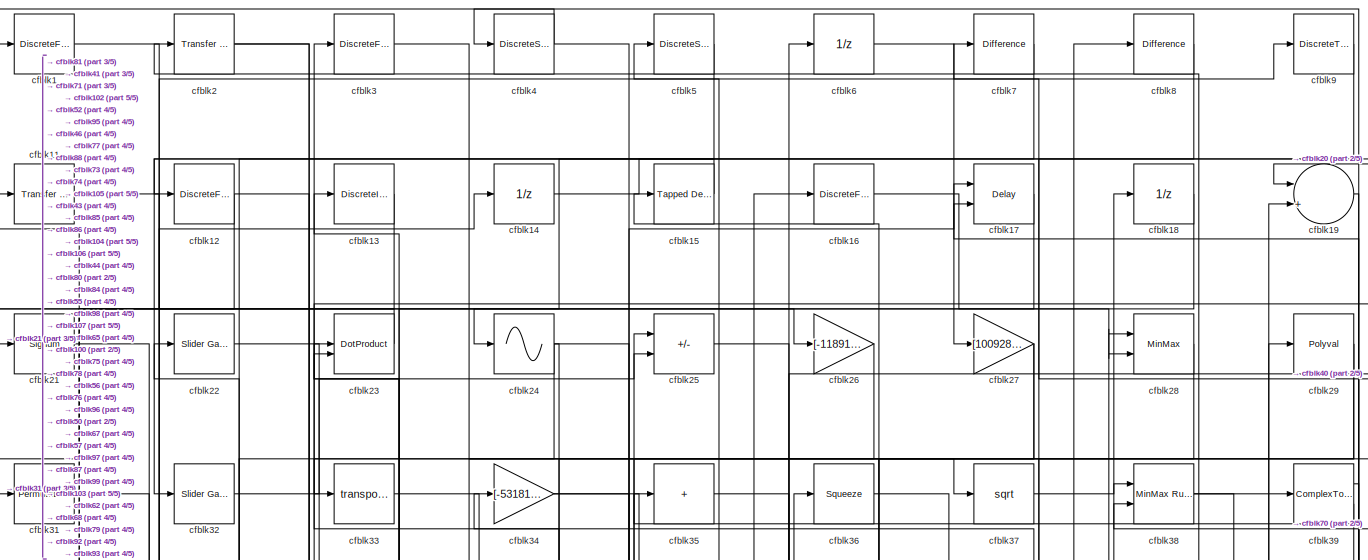
[diagram: root canvas - part 1/5, full width, top band]
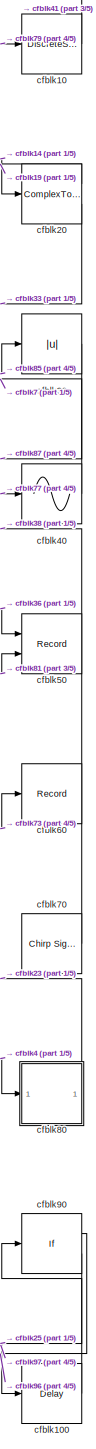
[diagram: root canvas - part 2/5, right side, full height]
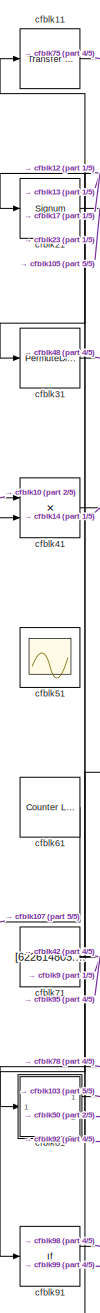
[diagram: root canvas - part 3/5, left side, full height]
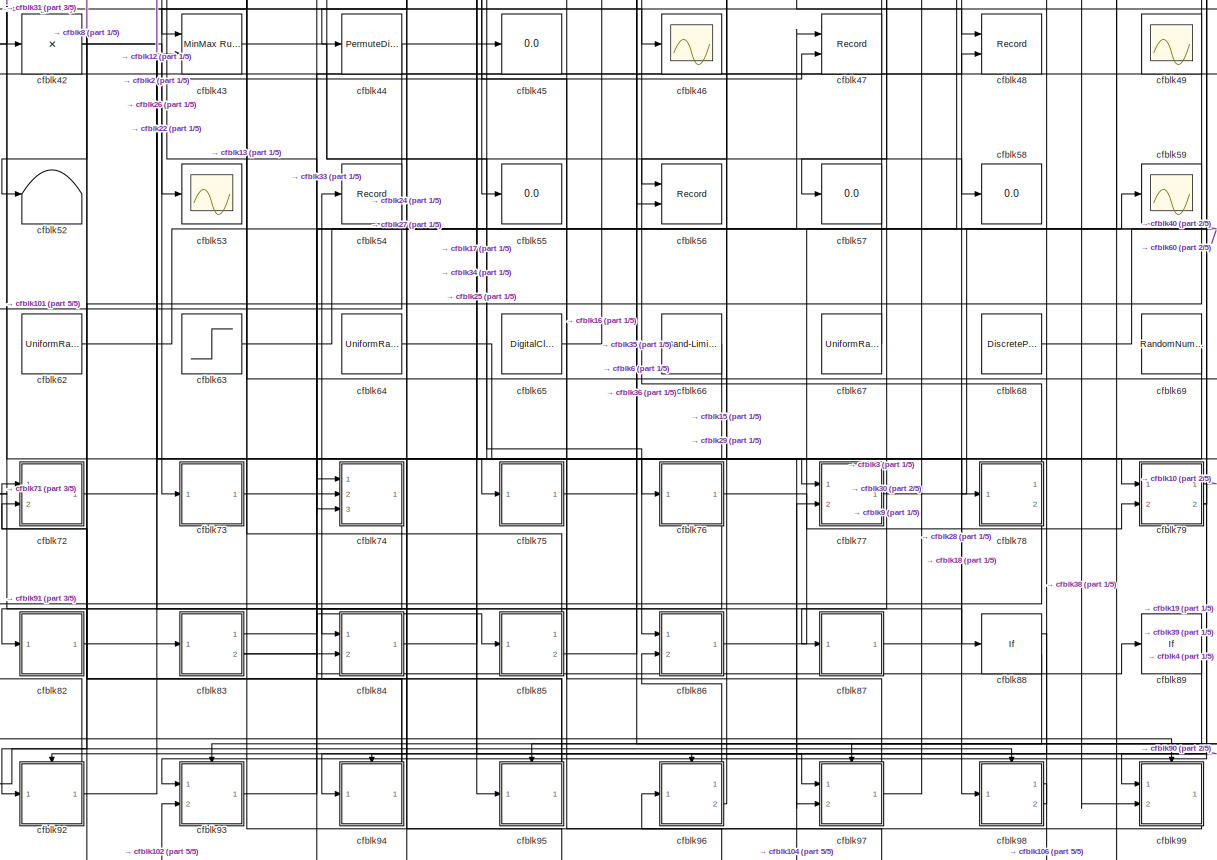
[diagram: root canvas - part 4/5, full width, middle band]
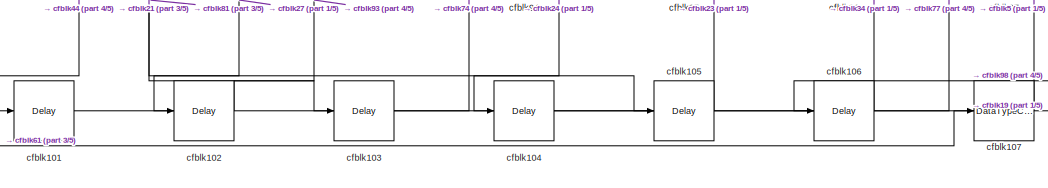
[diagram: root canvas - part 5/5, bottom center region]
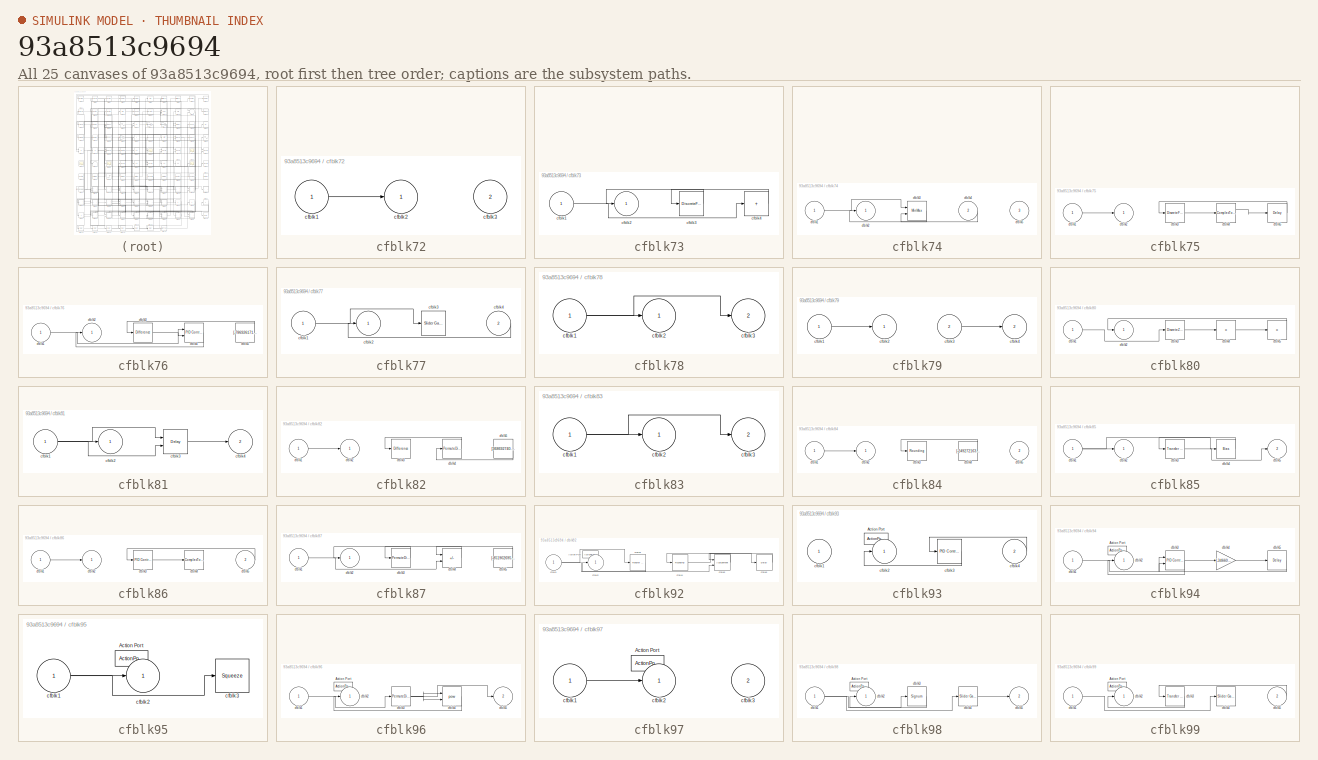
[diagram: thumbnail index - all 25 canvases of the model, root first then tree order]
MODEL slx_93a8513c9694
KIND model
CONFIG AbsTol = auto
CONFIG EnableMultiTasking = off
CONFIG FixedStep = auto
CONFIG MaxStep = auto
CONFIG MinStep = auto
CONFIG RelTol = 1e-3
CONFIG SampleTimeConstraint = Unconstrained
CONFIG SolverName = VariableStepAuto
CONFIG StartTime = 0.0
CONFIG StopTime = 10.0
BLOCK [DiscreteFir] cfblk1
  InputPortMap = u0
  OutputPortMap = o0
  Ports = [1, 1]
  SampleTime = 1
BLOCK [DiscreteStateSpace] cfblk10
BLOCK [Delay] cfblk100
  InputPortMap = u0
  Ports = [1, 1]
  SampleTime = 1
BLOCK [Delay] cfblk101
  InputPortMap = u0
  Ports = [1, 1]
  SampleTime = 1
BLOCK [Delay] cfblk102
  InputPortMap = u0
  Ports = [1, 1]
  SampleTime = 1
BLOCK [Delay] cfblk103
  InputPortMap = u0
  Ports = [1, 1]
  SampleTime = 1
BLOCK [Delay] cfblk104
  InputPortMap = u0
  Ports = [1, 1]
  SampleTime = 1
BLOCK [Delay] cfblk105
  InputPortMap = u0
  Ports = [1, 1]
  SampleTime = 1
BLOCK [Delay] cfblk106
  InputPortMap = u0
  Ports = [1, 1]
  SampleTime = 1
BLOCK [DataTypeConversion] cfblk107
  RndMeth = Floor
  SaturateOnIntegerOverflow = off
BLOCK [Reference] cfblk11  REF=simulink/Discrete/Transfer Fcn
First Order
  Ports = [1, 1]
  SourceBlock = simulink/Discrete/Transfer Fcn\nFirst Order
  SourceProductBaseCode = SL
  SourceType = First Order Transfer Fcn
BLOCK [DiscreteFir] cfblk12
  InputPortMap = u0
  OutputPortMap = o0
  Ports = [1, 1]
  SampleTime = 1
BLOCK [DiscreteIntegrator] cfblk13
  ICPrevOutput = DiscIntNeverNeededParam
  ICPrevScaledInput = DiscIntNeverNeededParam
  InitialConditionSetting = Auto
  Ports = [1, 1]
BLOCK [UnitDelay] cfblk14
  HasFrameUpgradeWarning = on
BLOCK [Reference] cfblk15  REF=simulink/Discrete/Tapped Delay
  Ports = [1, 1]
  SourceBlock = simulink/Discrete/Tapped Delay
  SourceProductBaseCode = SL
  SourceType = Tapped Delay Line
BLOCK [DiscreteFilter] cfblk16
  InputPortMap = u0
  Ports = [1, 1]
  SampleTime = 1
BLOCK [Delay] cfblk17
  DelayLengthSource = Input port
  InputPortMap = u0,p1
  Ports = [2, 1]
  SampleTime = 1
BLOCK [UnitDelay] cfblk18
  HasFrameUpgradeWarning = on
BLOCK [Sum] cfblk19
  Inputs = |++
  Ports = [2, 1]
BLOCK [Reference] cfblk2  REF=simulink/Discrete/Transfer Fcn
First Order
  Ports = [1, 1]
  SourceBlock = simulink/Discrete/Transfer Fcn\nFirst Order
  SourceProductBaseCode = SL
  SourceType = First Order Transfer Fcn
BLOCK [ComplexToRealImag] cfblk20
  Ports = [1, 2]
BLOCK [Signum] cfblk21
BLOCK [Reference] cfblk22  REF=simulink/Math
Operations/Slider
Gain
  Ports = [1, 1]
  SourceBlock = simulink/Math\nOperations/Slider\nGain
  SourceProductBaseCode = SL
  SourceType = Slider Gain
BLOCK [DotProduct] cfblk23
  OutDataTypeStr = Inherit: Inherit via internal rule
BLOCK [Sin] cfblk24
  Ports = [1, 1]
  SampleTime = 0
  TimeSource = Use external signal
BLOCK [Sum] cfblk25
  IconShape = rectangular
  Inputs = +-
  Ports = [2, 1]
BLOCK [Gain] cfblk26
  Gain = [-118919595.532735]
BLOCK [Gain] cfblk27
  Gain = [100928103.399547]
BLOCK [MinMax] cfblk28
  Function = max
  Inputs = 2
  Ports = [2, 1]
BLOCK [Polyval] cfblk29
  Coefs = [ +2.081618890e-019, -1.441693666e-014, +4.719686976e-010, -8.536869453e-006, +1.621573104e-001, -8.087801117e+001 ]
BLOCK [DiscreteFir] cfblk3
  InputPortMap = u0
  OutputPortMap = o0
  Ports = [1, 1]
  SampleTime = 1
BLOCK [Abs] cfblk30
  SaturateOnIntegerOverflow = off
BLOCK [PermuteDimensions] cfblk31
BLOCK [Reference] cfblk32  REF=simulink/Math
Operations/Slider
Gain
  Ports = [1, 1]
  SourceBlock = simulink/Math\nOperations/Slider\nGain
  SourceProductBaseCode = SL
  SourceType = Slider Gain
BLOCK [Math] cfblk33
  Operator = transpose
  Ports = [1, 1]
BLOCK [Gain] cfblk34
  Gain = [-531810260.183052]
BLOCK [Sum] cfblk35
  IconShape = rectangular
  Inputs = +
  Ports = [1, 1]
BLOCK [Squeeze] cfblk36
BLOCK [Sqrt] cfblk37
BLOCK [Reference] cfblk38  REF=simulink/Math
Operations/MinMax
Running
Resettable
  Ports = [2, 1]
  SourceBlock = simulink/Math\nOperations/MinMax\nRunning\nResettable
  SourceProductBaseCode = SL
  SourceType = MinMax Running Resettable
BLOCK [ComplexToRealImag] cfblk39
  Ports = [1, 2]
BLOCK [DiscreteStateSpace] cfblk4
BLOCK [Sin] cfblk40
  Ports = [1, 1]
  SampleTime = 0
  TimeSource = Use external signal
BLOCK [Product] cfblk41
  Inputs = **
  Ports = [2, 1]
BLOCK [Product] cfblk42
  Inputs = *
  Ports = [1, 1]
BLOCK [Reference] cfblk43  REF=simulink/Math
Operations/MinMax
Running
Resettable
  Ports = [2, 1]
  SourceBlock = simulink/Math\nOperations/MinMax\nRunning\nResettable
  SourceProductBaseCode = SL
  SourceType = MinMax Running Resettable
BLOCK [PermuteDimensions] cfblk44
BLOCK [Display] cfblk45
  Decimation = 1
  Ports = [1]
BLOCK [Scope] cfblk46
  Floating = off
  NumInputPorts = 1
  Ports = [1]
BLOCK [Record] cfblk47
  CompatibilityTag = XY
  FileSettingsInternal = {"entries":[{"content":{"excelSettings":{"content":{},"type":"Streamout.ExcelSettings"}},"type":"Streamout.FileSettingStorage","uuid":"8466640d-3540-4ce9-993a-5f65f49446ff"}],"packageUris":["http://schema.mathworks.com/mf0/streamout_blocks/R2020a"],"version":"1.0"}
  Layout = [1 1]
  Ports = [2]
  SignalsInternal = {"entries":[{"content":{"signals":[{"content":{"blockPath":["sampleModel242/cfblk47"],"channel":[],"dimensions":[1],"domain":"sampleModel242/cfblk47","lineColor":"#a2142f","plots":[1],"port":1,"sid":[""],"signalID":9661,"signalName":"cfblk63"},"type":"RecordBlkView.Signal","uuid":"67ad4537-a0c7-4a78-aa5b-3ca15c563dde"},{"content":{"blockPath":["sampleModel242/cfblk47"],"channel":[],"dimensions":[1...<+385ch>
  VisualizationBindings = {"xyplotplugin":{"info":[{"series":[{"bindingParametersList":[{"parameter":"X-Axis","signalID":9661,"signalName":"cfblk63"},{"parameter":"Y-Axis","signalID":9665,"signalName":"cfblk92"}],"seriesID":40376}],"subplotID":1}]}}
BLOCK [Record] cfblk48
  CompatibilityTag = XY
  FileSettingsInternal = {"entries":[{"content":{"excelSettings":{"content":{},"type":"Streamout.ExcelSettings"}},"type":"Streamout.FileSettingStorage","uuid":"c13b47bf-a8bf-41b9-80a1-0a6b1b0ceada"}],"packageUris":["http://schema.mathworks.com/mf0/streamout_blocks/R2020a"],"version":"1.0"}
  Layout = [1 1]
  Ports = [2]
  SignalsInternal = {"entries":[{"content":{"signals":[{"content":{"blockPath":["sampleModel242/cfblk48"],"channel":[],"dimensions":[1,1],"domain":"sampleModel242/cfblk48","lineColor":"#a2142f","plots":[1],"port":1,"sid":[""],"signalID":9669,"signalName":"cfblk31"},"type":"RecordBlkView.Signal","uuid":"329d8449-1276-47a0-bcc8-603c41fd3026"},{"content":{"blockPath":["sampleModel242/cfblk48"],"channel":[],"dimensions":...<+387ch>
  VisualizationBindings = {"xyplotplugin":{"info":[{"series":[{"bindingParametersList":[{"parameter":"X-Axis","signalID":9669,"signalName":"cfblk31"},{"parameter":"Y-Axis","signalID":9673,"signalName":"cfblk83:2"}],"seriesID":38915}],"subplotID":1}]}}
BLOCK [Scope] cfblk49
  Floating = on
  NumInputPorts = 1
  Ports = []
BLOCK [DiscreteStateSpace] cfblk5
BLOCK [Record] cfblk50
  CompatibilityTag = XY
  FileSettingsInternal = {"entries":[{"content":{"excelSettings":{"content":{},"type":"Streamout.ExcelSettings"}},"type":"Streamout.FileSettingStorage","uuid":"6b25f1e0-3625-4cd8-9b2f-529eb5e0b0c7"}],"packageUris":["http://schema.mathworks.com/mf0/streamout_blocks/R2020a"],"version":"1.0"}
  Layout = [1 1]
  Ports = [2]
  SignalsInternal = {"entries":[{"content":{"signals":[{"content":{"blockPath":["sampleModel242/cfblk50"],"channel":[],"dimensions":[1],"domain":"sampleModel242/cfblk50","lineColor":"#a2142f","plots":[1],"port":1,"sid":[""],"signalID":9677,"signalName":"cfblk36"},"type":"RecordBlkView.Signal","uuid":"2faef9c5-9386-467e-8d00-879811eaf1a7"},{"content":{"blockPath":["sampleModel242/cfblk50"],"channel":[],"dimensions":[1...<+385ch>
  VisualizationBindings = {"xyplotplugin":{"info":[{"series":[{"bindingParametersList":[{"parameter":"X-Axis","signalID":9677,"signalName":"cfblk36"},{"parameter":"Y-Axis","signalID":9681,"signalName":"cfblk81:2"}],"seriesID":706}],"subplotID":1}]}}
BLOCK [Scope] cfblk51
  Floating = on
  NumInputPorts = 1
  Ports = []
BLOCK [Terminator] cfblk52
BLOCK [Scope] cfblk53
  Floating = off
  NumInputPorts = 1
  Ports = [1]
BLOCK [Record] cfblk54
  FileSettingsInternal = {"entries":[{"content":{"excelSettings":{"content":{},"type":"Streamout.ExcelSettings"}},"type":"Streamout.FileSettingStorage","uuid":"06190793-f5fc-415c-b838-8303df1b911b"}],"packageUris":["http://schema.mathworks.com/mf0/streamout_blocks/R2020a"],"version":"1.0"}
  Ports = [1]
  SignalsInternal = {"entries":[{"content":{"signals":[{"content":{"blockPath":["sampleModel242/cfblk54"],"channel":[],"dimensions":[1],"domain":"sampleModel242/cfblk54","lineColor":"#ff13a6","plots":[1],"port":1,"sid":[""],"signalID":9685,"signalName":"cfblk94"},"type":"RecordBlkView.Signal","uuid":"6a6a1d66-a567-4c36-91e1-80c7a0c5bc7a"}]},"type":"RecordBlkView.InputSignals","uuid":"c8db5507-b214-4169-ac9a-3b7f1f8d5...<+97ch>
  VisualizationBindings = {"sparklinesplugin":{"info":[{"bindingParametersList":[],"subplotID":1}]}}
BLOCK [Display] cfblk55
  Decimation = 1
  Ports = [1]
BLOCK [Record] cfblk56
  CompatibilityTag = XY
  FileSettingsInternal = {"entries":[{"content":{"excelSettings":{"content":{},"type":"Streamout.ExcelSettings"}},"type":"Streamout.FileSettingStorage","uuid":"80c68350-c5d5-4745-a822-7bd470e9d639"}],"packageUris":["http://schema.mathworks.com/mf0/streamout_blocks/R2020a"],"version":"1.0"}
  Layout = [1 1]
  Ports = [2]
  SignalsInternal = {"entries":[{"content":{"signals":[{"content":{"blockPath":["sampleModel242/cfblk56"],"channel":[],"dimensions":[1],"domain":"sampleModel242/cfblk56","lineColor":"#a2142f","plots":[1],"port":1,"sid":[""],"signalID":9689,"signalName":"cfblk29"},"type":"RecordBlkView.Signal","uuid":"3f9a410f-4a9b-4b88-868e-e92ce524b347"},{"content":{"blockPath":["sampleModel242/cfblk56"],"channel":[],"dimensions":[1...<+383ch>
  VisualizationBindings = {"xyplotplugin":{"info":[{"series":[{"bindingParametersList":[{"parameter":"X-Axis","signalID":9689,"signalName":"cfblk29"},{"parameter":"Y-Axis","signalID":9693,"signalName":"cfblk35"}],"seriesID":40562}],"subplotID":1}]}}
BLOCK [Display] cfblk57
  Decimation = 1
  Ports = [1]
BLOCK [Display] cfblk58
  Decimation = 1
  Ports = [1]
BLOCK [Scope] cfblk59
  Floating = off
  NumInputPorts = 1
  Ports = [1]
BLOCK [UnitDelay] cfblk6
  HasFrameUpgradeWarning = on
BLOCK [Record] cfblk60
  FileSettingsInternal = {"entries":[{"content":{"excelSettings":{"content":{},"type":"Streamout.ExcelSettings"}},"type":"Streamout.FileSettingStorage","uuid":"ac3e01c3-e921-4d05-880d-693c9b2be958"}],"packageUris":["http://schema.mathworks.com/mf0/streamout_blocks/R2020a"],"version":"1.0"}
  Ports = [1]
  SignalsInternal = {"entries":[{"content":{"signals":[{"content":{"blockPath":["sampleModel242/cfblk60"],"channel":[],"dimensions":[1],"domain":"sampleModel242/cfblk60","lineColor":"#77ac30","plots":[1],"port":1,"sid":[""],"signalID":9657,"signalName":"cfblk73"},"type":"RecordBlkView.Signal","uuid":"ee10d19c-2b42-44d8-8030-24d641aff3a6"}]},"type":"RecordBlkView.InputSignals","uuid":"6dbc1fc7-41f6-4a64-bb1e-672c8c773...<+97ch>
  VisualizationBindings = {"sparklinesplugin":{"info":[{"bindingParametersList":[],"subplotID":1}]}}
BLOCK [Reference] cfblk61  REF=simulink/Sources/Counter
Limited
  Ports = [0, 1]
  SourceBlock = simulink/Sources/Counter\nLimited
  SourceProductBaseCode = SL
  SourceType = Counter Limited
BLOCK [UniformRandomNumber] cfblk62
  Maximum = [4444264149.465066]
  Minimum = [-3232928567.587387]
  SampleTime = 0.1
  Seed = [1192027.000000]
BLOCK [Step] cfblk63
  After = [813002846.290973]
  Before = [160858895.694501]
  SampleTime = 0
  Time = [34.000000]
BLOCK [UniformRandomNumber] cfblk64
  Maximum = [9583603799.572458]
  Minimum = [-4185575344.574016]
  SampleTime = 0.1
  Seed = [1929106.000000]
BLOCK [DigitalClock] cfblk65
BLOCK [Reference] cfblk66  REF=simulink/Sources/Band-Limited
White Noise
  Ports = [0, 1]
  SourceBlock = simulink/Sources/Band-Limited\nWhite Noise
  SourceProductBaseCode = SL
  SourceType = Band-Limited White Noise.
BLOCK [UniformRandomNumber] cfblk67
  Maximum = [7113492972.441939]
  Minimum = [-6418738320.620914]
  SampleTime = 0.1
  Seed = [24566985.000000]
BLOCK [DiscretePulseGenerator] cfblk68
  Amplitude = [-591785427.766708]
  Period = [98460536.017098]
  PhaseDelay = [6.000000]
  Ports = [0, 1]
  PulseType = Time based
  PulseWidth = 5
BLOCK [RandomNumber] cfblk69
  Mean = [-20192.595669]
  SampleTime = 0.1
  Seed = [204664879.000000]
  Variance = [90897.731430]
BLOCK [Reference] cfblk7  REF=simulink/Discrete/Difference
  Ports = [1, 1]
  SourceBlock = simulink/Discrete/Difference
  SourceProductBaseCode = SL
  SourceType = Difference
BLOCK [Reference] cfblk70  REF=simulink/Sources/Chirp Signal
  Ports = [0, 1]
  SourceBlock = simulink/Sources/Chirp Signal
  SourceProductBaseCode = SL
  SourceType = chirp
BLOCK [Constant] cfblk71
  SampleTime = 1
  Value = [622614805.050549]
BLOCK [SubSystem] cfblk72
  Ports = [2, 1]
  RequestExecContextInheritance = off
BLOCK [Inport] cfblk72/cfblk1
BLOCK [Outport] cfblk72/cfblk2
BLOCK [Inport] cfblk72/cfblk3
  Port = 2
BLOCK [SubSystem] cfblk73
  Ports = [1, 1]
  RequestExecContextInheritance = off
BLOCK [Inport] cfblk73/cfblk1
BLOCK [Outport] cfblk73/cfblk2
BLOCK [DiscreteFir] cfblk73/cfblk3
  InputPortMap = u0
  OutputPortMap = o0
  Ports = [1, 1]
  SampleTime = 1
BLOCK [Sum] cfblk73/cfblk4
  IconShape = rectangular
  Inputs = +
  Ports = [1, 1]
BLOCK [SubSystem] cfblk74
  Ports = [3, 1]
  RequestExecContextInheritance = off
BLOCK [Inport] cfblk74/cfblk1
BLOCK [Outport] cfblk74/cfblk2
BLOCK [MinMax] cfblk74/cfblk3
  Inputs = 2
  Ports = [2, 1]
BLOCK [Inport] cfblk74/cfblk4
  Port = 2
BLOCK [Inport] cfblk74/cfblk5
  Port = 3
BLOCK [SubSystem] cfblk75
  Ports = [1, 1]
  RequestExecContextInheritance = off
BLOCK [Inport] cfblk75/cfblk1
BLOCK [Outport] cfblk75/cfblk2
BLOCK [DiscreteFilter] cfblk75/cfblk3
  InputPortMap = u0
  Ports = [1, 1]
  SampleTime = 1
BLOCK [ComplexToMagnitudeAngle] cfblk75/cfblk4
  Ports = [1, 2]
BLOCK [Delay] cfblk75/cfblk5
  InputPortMap = u0
  Ports = [1, 1]
  SampleTime = 1
BLOCK [SubSystem] cfblk76
  Ports = [1, 1]
  RequestExecContextInheritance = off
BLOCK [Inport] cfblk76/cfblk1
BLOCK [Outport] cfblk76/cfblk2
BLOCK [Reference] cfblk76/cfblk3  REF=simulink/Discrete/Difference
  Ports = [1, 1]
  SourceBlock = simulink/Discrete/Difference
  SourceProductBaseCode = SL
  SourceType = Difference
BLOCK [Reference] cfblk76/cfblk4  REF=slpidlib/PID Controller (2DOF)
  Ports = [2, 1]
  SourceBlock = slpidlib/PID Controller (2DOF)
  SourceProductBaseCode = SL
  SourceType = PID 2dof
BLOCK [Constant] cfblk76/cfblk5
  SampleTime = 1
  Value = [-786926171.855826]
BLOCK [SubSystem] cfblk77
  Ports = [2, 1]
  RequestExecContextInheritance = off
BLOCK [Inport] cfblk77/cfblk1
BLOCK [Outport] cfblk77/cfblk2
BLOCK [Reference] cfblk77/cfblk3  REF=simulink/Math
Operations/Slider
Gain
  Ports = [1, 1]
  SourceBlock = simulink/Math\nOperations/Slider\nGain
  SourceProductBaseCode = SL
  SourceType = Slider Gain
BLOCK [Inport] cfblk77/cfblk4
  Port = 2
BLOCK [SubSystem] cfblk78
  Ports = [1, 2]
  RequestExecContextInheritance = off
BLOCK [Inport] cfblk78/cfblk1
BLOCK [Outport] cfblk78/cfblk2
BLOCK [Outport] cfblk78/cfblk3
  Port = 2
BLOCK [SubSystem] cfblk79
  Ports = [2, 2]
  RequestExecContextInheritance = off
BLOCK [Inport] cfblk79/cfblk1
BLOCK [Outport] cfblk79/cfblk2
BLOCK [Inport] cfblk79/cfblk3
  Port = 2
BLOCK [Outport] cfblk79/cfblk4
  Port = 2
BLOCK [Reference] cfblk8  REF=simulink/Discrete/Difference
  Ports = [1, 1]
  SourceBlock = simulink/Discrete/Difference
  SourceProductBaseCode = SL
  SourceType = Difference
BLOCK [SubSystem] cfblk80
  Ports = [1, 1]
  RequestExecContextInheritance = off
BLOCK [Inport] cfblk80/cfblk1
BLOCK [Outport] cfblk80/cfblk2
BLOCK [DiscreteZeroPole] cfblk80/cfblk3
  Gain = 1
  Poles = [0 0.5]
BLOCK [Product] cfblk80/cfblk4
  Inputs = *
  Ports = [1, 1]
BLOCK [Product] cfblk80/cfblk5
  Inputs = *
  Ports = [1, 1]
BLOCK [SubSystem] cfblk81
  Ports = [1, 2]
  RequestExecContextInheritance = off
BLOCK [Inport] cfblk81/cfblk1
BLOCK [Outport] cfblk81/cfblk2
BLOCK [Delay] cfblk81/cfblk3
  DelayLengthSource = Input port
  InputPortMap = u0,p1
  Ports = [2, 1]
  SampleTime = 1
BLOCK [Outport] cfblk81/cfblk4
  Port = 2
BLOCK [SubSystem] cfblk82
  Ports = [1, 1]
  RequestExecContextInheritance = off
BLOCK [Inport] cfblk82/cfblk1
BLOCK [Outport] cfblk82/cfblk2
BLOCK [Reference] cfblk82/cfblk3  REF=simulink/Discrete/Difference
  Ports = [1, 1]
  SourceBlock = simulink/Discrete/Difference
  SourceProductBaseCode = SL
  SourceType = Difference
BLOCK [PermuteDimensions] cfblk82/cfblk4
BLOCK [Constant] cfblk82/cfblk5
  SampleTime = 1
  Value = [368692740.676862]
BLOCK [SubSystem] cfblk83
  Ports = [1, 2]
  RequestExecContextInheritance = off
BLOCK [Inport] cfblk83/cfblk1
BLOCK [Outport] cfblk83/cfblk2
BLOCK [Outport] cfblk83/cfblk3
  Port = 2
BLOCK [SubSystem] cfblk84
  Ports = [2, 1]
  RequestExecContextInheritance = off
BLOCK [Inport] cfblk84/cfblk1
BLOCK [Outport] cfblk84/cfblk2
BLOCK [Rounding] cfblk84/cfblk3
BLOCK [Constant] cfblk84/cfblk4
  SampleTime = 1
  Value = [-249272163.027068]
BLOCK [Inport] cfblk84/cfblk5
  Port = 2
BLOCK [SubSystem] cfblk85
  Ports = [1, 2]
  RequestExecContextInheritance = off
BLOCK [Inport] cfblk85/cfblk1
BLOCK [Outport] cfblk85/cfblk2
BLOCK [Reference] cfblk85/cfblk3  REF=simulink/Discrete/Transfer Fcn
Lead or Lag
  Ports = [1, 1]
  SourceBlock = simulink/Discrete/Transfer Fcn\nLead or Lag
  SourceProductBaseCode = SL
  SourceType = Lead or Lag Compensator
BLOCK [Bias] cfblk85/cfblk4
  Bias = [-871107666.530002]
  SaturateOnIntegerOverflow = off
BLOCK [Outport] cfblk85/cfblk5
  Port = 2
BLOCK [SubSystem] cfblk86
  Ports = [2, 1]
  RequestExecContextInheritance = off
BLOCK [Inport] cfblk86/cfblk1
BLOCK [Outport] cfblk86/cfblk2
BLOCK [Reference] cfblk86/cfblk3  REF=slpidlib/PID Controller
  Ports = [1, 1]
  SourceBlock = slpidlib/PID Controller
  SourceProductBaseCode = SL
  SourceType = PID 1dof
BLOCK [ComplexToMagnitudeAngle] cfblk86/cfblk4
  Ports = [1, 2]
BLOCK [Inport] cfblk86/cfblk5
  Port = 2
BLOCK [SubSystem] cfblk87
  Ports = [1, 1]
  RequestExecContextInheritance = off
BLOCK [Inport] cfblk87/cfblk1
BLOCK [Outport] cfblk87/cfblk2
BLOCK [PermuteDimensions] cfblk87/cfblk3
BLOCK [Sum] cfblk87/cfblk4
  IconShape = rectangular
  Inputs = +-
  Ports = [2, 1]
BLOCK [Constant] cfblk87/cfblk5
  SampleTime = 1
  Value = [-851902695.866605]
BLOCK [If] cfblk88
  IfExpression = u1 >= 0
  Ports = [1, 2]
  SampleTime = 1
BLOCK [If] cfblk89
  IfExpression = u1 >= 0
  Ports = [1, 2]
  SampleTime = 1
BLOCK [DiscreteTransferFcn] cfblk9
  InputPortMap = u0
  Ports = [1, 1]
  SampleTime = 1
BLOCK [If] cfblk90
  IfExpression = u1 >= 0
  Ports = [1, 2]
  SampleTime = 1
BLOCK [If] cfblk91
  IfExpression = u1 >= 0
  Ports = [1, 2]
  SampleTime = 1
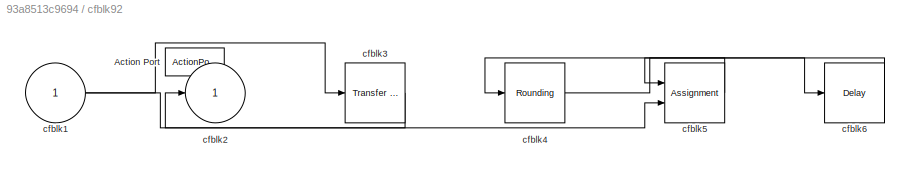
BLOCK [SubSystem] cfblk92
  Ports = [1, 1, 0, 0, 0, 0, 0, 1]
  RequestExecContextInheritance = off
  TreatAsAtomicUnit = on
BLOCK [ActionPort] cfblk92/Action Port
  ActionPortLabel = if(u1 >= 0)
BLOCK [Inport] cfblk92/cfblk1
BLOCK [Outport] cfblk92/cfblk2
BLOCK [Reference] cfblk92/cfblk3  REF=simulink/Discrete/Transfer Fcn
Real Zero
  Ports = [1, 1]
  SourceBlock = simulink/Discrete/Transfer Fcn\nReal Zero
  SourceProductBaseCode = SL
  SourceType = Transfer Fcn Real Zero
BLOCK [Rounding] cfblk92/cfblk4
BLOCK [Assignment] cfblk92/cfblk5
  DiagnosticForDimensions = Warning
  IndexOptions = Index vector (dialog)
  Indices = 1
  OutputSizes = 1
  Ports = [2, 1]
BLOCK [Delay] cfblk92/cfblk6
  InputPortMap = u0
  Ports = [1, 1]
BLOCK [SubSystem] cfblk93
  Ports = [2, 1, 0, 0, 0, 0, 0, 1]
  RequestExecContextInheritance = off
  TreatAsAtomicUnit = on
BLOCK [ActionPort] cfblk93/Action Port
  ActionPortLabel = else
BLOCK [Inport] cfblk93/cfblk1
BLOCK [Outport] cfblk93/cfblk2
BLOCK [Reference] cfblk93/cfblk3  REF=slpidlib/PID Controller
  Ports = [1, 1]
  SourceBlock = slpidlib/PID Controller
  SourceProductBaseCode = SL
  SourceType = PID 1dof
BLOCK [Inport] cfblk93/cfblk4
  Port = 2
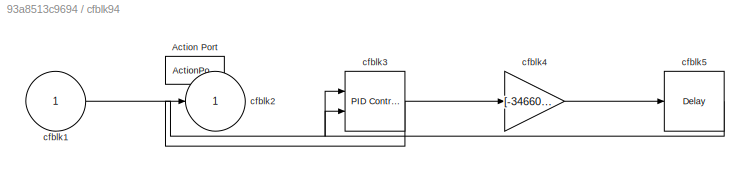
BLOCK [SubSystem] cfblk94
  Ports = [1, 1, 0, 0, 0, 0, 0, 1]
  RequestExecContextInheritance = off
  TreatAsAtomicUnit = on
BLOCK [ActionPort] cfblk94/Action Port
  ActionPortLabel = if(u1 >= 0)
BLOCK [Inport] cfblk94/cfblk1
BLOCK [Outport] cfblk94/cfblk2
BLOCK [Reference] cfblk94/cfblk3  REF=slpidlib/PID Controller (2DOF)
  Ports = [2, 1]
  SourceBlock = slpidlib/PID Controller (2DOF)
  SourceProductBaseCode = SL
  SourceType = PID 2dof
BLOCK [Gain] cfblk94/cfblk4
  Gain = [-346603947.064758]
BLOCK [Delay] cfblk94/cfblk5
  InputPortMap = u0
  Ports = [1, 1]
BLOCK [SubSystem] cfblk95
  Ports = [1, 1, 0, 0, 0, 0, 0, 1]
  RequestExecContextInheritance = off
  TreatAsAtomicUnit = on
BLOCK [ActionPort] cfblk95/Action Port
  ActionPortLabel = else
BLOCK [Inport] cfblk95/cfblk1
BLOCK [Outport] cfblk95/cfblk2
BLOCK [Squeeze] cfblk95/cfblk3
BLOCK [SubSystem] cfblk96
  Ports = [1, 2, 0, 0, 0, 0, 0, 1]
  RequestExecContextInheritance = off
  TreatAsAtomicUnit = on
BLOCK [ActionPort] cfblk96/Action Port
  ActionPortLabel = if(u1 >= 0)
BLOCK [Inport] cfblk96/cfblk1
BLOCK [Outport] cfblk96/cfblk2
BLOCK [PermuteDimensions] cfblk96/cfblk3
BLOCK [Math] cfblk96/cfblk4
  Operator = pow
  Ports = [2, 1]
BLOCK [Outport] cfblk96/cfblk5
  Port = 2
BLOCK [SubSystem] cfblk97
  Ports = [2, 1, 0, 0, 0, 0, 0, 1]
  RequestExecContextInheritance = off
  TreatAsAtomicUnit = on
BLOCK [ActionPort] cfblk97/Action Port
  ActionPortLabel = else
BLOCK [Inport] cfblk97/cfblk1
BLOCK [Outport] cfblk97/cfblk2
BLOCK [Inport] cfblk97/cfblk3
  Port = 2
BLOCK [SubSystem] cfblk98
  Ports = [1, 2, 0, 0, 0, 0, 0, 1]
  RequestExecContextInheritance = off
  TreatAsAtomicUnit = on
BLOCK [ActionPort] cfblk98/Action Port
  ActionPortLabel = if(u1 >= 0)
BLOCK [Inport] cfblk98/cfblk1
BLOCK [Outport] cfblk98/cfblk2
BLOCK [Signum] cfblk98/cfblk3
BLOCK [Reference] cfblk98/cfblk4  REF=simulink/Math
Operations/Slider
Gain
  Ports = [1, 1]
  SourceBlock = simulink/Math\nOperations/Slider\nGain
  SourceProductBaseCode = SL
  SourceType = Slider Gain
BLOCK [Outport] cfblk98/cfblk5
  Port = 2
BLOCK [SubSystem] cfblk99
  Ports = [2, 1, 0, 0, 0, 0, 0, 1]
  RequestExecContextInheritance = off
  TreatAsAtomicUnit = on
BLOCK [ActionPort] cfblk99/Action Port
  ActionPortLabel = else
BLOCK [Inport] cfblk99/cfblk1
BLOCK [Outport] cfblk99/cfblk2
BLOCK [Reference] cfblk99/cfblk3  REF=simulink/Discrete/Transfer Fcn
Real Zero
  Ports = [1, 1]
  SourceBlock = simulink/Discrete/Transfer Fcn\nReal Zero
  SourceProductBaseCode = SL
  SourceType = Transfer Fcn Real Zero
BLOCK [Reference] cfblk99/cfblk4  REF=simulink/Math
Operations/Slider
Gain
  Ports = [1, 1]
  SourceBlock = simulink/Math\nOperations/Slider\nGain
  SourceProductBaseCode = SL
  SourceType = Slider Gain
BLOCK [Inport] cfblk99/cfblk5
  Port = 2
LINE cfblk100:1 -> cfblk90:1
LINE cfblk101:1 -> cfblk74:2
LINE cfblk102:1 -> cfblk93:2
LINE cfblk103:1 -> cfblk19:2
LINE cfblk104:1 -> cfblk77:2
LINE cfblk105:1 -> cfblk23:2
LINE cfblk106:1 -> cfblk34:1
LINE cfblk107:1 -> cfblk5:1
LINE cfblk10:1 -> cfblk41:1
LINE cfblk11:1 -> cfblk75:1
NET cfblk12:1 -> cfblk81:1, cfblk88:1
LINE cfblk13:1 -> cfblk31:1
LINE cfblk14:1 -> cfblk20:1
LINE cfblk15:1 -> cfblk12:1
LINE cfblk16:1 -> cfblk28:2
LINE cfblk17:1 -> cfblk41:2
LINE cfblk18:1 -> cfblk43:1
LINE cfblk19:1 -> cfblk99:1
LINE cfblk1:1 -> cfblk26:1
LINE cfblk20:1 -> cfblk19:1
LINE cfblk20:2 -> cfblk33:1
LINE cfblk21:1 -> cfblk105:1
LINE cfblk22:1 -> cfblk74:1
LINE cfblk23:1 -> cfblk21:1
NET cfblk24:1 -> cfblk104:1, cfblk74:3, cfblk97:1
LINE cfblk25:1 -> cfblk100:1
LINE cfblk26:1 -> cfblk73:1
NET cfblk27:1 -> cfblk102:1, cfblk44:1
LINE cfblk28:1 -> cfblk55:1
NET cfblk29:1 -> cfblk56:1, cfblk76:1
NET cfblk2:1 -> cfblk46:1, cfblk77:1
LINE cfblk30:1 -> cfblk87:1
LINE cfblk31:1 -> cfblk48:1
LINE cfblk32:1 -> cfblk25:1
LINE cfblk33:1 -> cfblk86:1
NET cfblk34:1 -> cfblk78:1, cfblk98:1
LINE cfblk35:1 -> cfblk56:2
LINE cfblk36:1 -> cfblk50:1
LINE cfblk37:1 -> cfblk38:1
NET cfblk38:1 -> cfblk39:1, cfblk99:2
LINE cfblk39:1 -> cfblk93:1
LINE cfblk39:2 -> cfblk92:1
LINE cfblk3:1 -> cfblk37:1
LINE cfblk40:1 -> cfblk7:1
LINE cfblk41:1 -> cfblk14:1
NET cfblk42:1 -> cfblk53:1, cfblk79:1
LINE cfblk43:1 -> cfblk58:1
NET cfblk44:1 -> cfblk101:1, cfblk25:2
NET cfblk4:1 -> cfblk1:1, cfblk80:1
LINE cfblk5:1 -> cfblk32:1
LINE cfblk61:1 -> cfblk107:1
LINE cfblk62:1 -> cfblk29:1
LINE cfblk63:1 -> cfblk47:1
LINE cfblk64:1 -> cfblk97:2
LINE cfblk65:1 -> cfblk16:1
LINE cfblk66:1 -> cfblk94:1
LINE cfblk67:1 -> cfblk3:1
LINE cfblk68:1 -> cfblk4:1
LINE cfblk69:1 -> cfblk84:2
LINE cfblk6:1 -> cfblk27:1
LINE cfblk70:1 -> cfblk38:2
NET cfblk71:1 -> cfblk42:1, cfblk95:1, cfblk9:1
LINE cfblk72/cfblk1:1 -> cfblk72/cfblk2:1
LINE cfblk72:1 -> cfblk43:2
LINE cfblk73/cfblk1:1 -> cfblk73/cfblk4:1
LINE cfblk73/cfblk3:1 -> cfblk73/cfblk2:1
LINE cfblk73/cfblk4:1 -> cfblk73/cfblk3:1
LINE cfblk73:1 -> cfblk60:1
LINE cfblk74/cfblk1:1 -> cfblk74/cfblk3:1
LINE cfblk74/cfblk3:1 -> cfblk74/cfblk2:1
LINE cfblk74/cfblk4:1 -> cfblk74/cfblk3:2
LINE cfblk74:1 -> cfblk84:1
LINE cfblk75/cfblk1:1 -> cfblk75/cfblk2:1
LINE cfblk75/cfblk3:1 -> cfblk75/cfblk4:1
LINE cfblk75/cfblk4:1 -> cfblk75/cfblk5:1
LINE cfblk75/cfblk5:1 -> cfblk75/cfblk3:1
LINE cfblk75:1 -> cfblk6:1
LINE cfblk76/cfblk1:1 -> cfblk76/cfblk4:1
LINE cfblk76/cfblk3:1 -> cfblk76/cfblk4:2
LINE cfblk76/cfblk4:1 -> cfblk76/cfblk2:1
LINE cfblk76/cfblk5:1 -> cfblk76/cfblk3:1
NET cfblk76:1 -> cfblk79:2, cfblk82:1
LINE cfblk77/cfblk1:1 -> cfblk77/cfblk3:1
LINE cfblk77/cfblk4:1 -> cfblk77/cfblk2:1
LINE cfblk77:1 -> cfblk40:1
NET cfblk78/cfblk1:1 -> cfblk78/cfblk2:1, cfblk78/cfblk3:1
LINE cfblk78:1 -> cfblk36:1
LINE cfblk78:2 -> cfblk91:1
LINE cfblk79/cfblk1:1 -> cfblk79/cfblk2:1
LINE cfblk79/cfblk3:1 -> cfblk79/cfblk4:1
LINE cfblk79:1 -> cfblk10:1
NET cfblk79:2 -> cfblk17:2, cfblk35:1
LINE cfblk7:1 -> cfblk24:1
LINE cfblk80/cfblk1:1 -> cfblk80/cfblk3:1
LINE cfblk80/cfblk3:1 -> cfblk80/cfblk4:1
LINE cfblk80/cfblk4:1 -> cfblk80/cfblk5:1
LINE cfblk80/cfblk5:1 -> cfblk80/cfblk2:1
LINE cfblk80:1 -> cfblk23:1
NET cfblk81/cfblk1:1 -> cfblk81/cfblk2:1, cfblk81/cfblk3:1, cfblk81/cfblk3:2
LINE cfblk81/cfblk3:1 -> cfblk81/cfblk4:1
LINE cfblk81:1 -> cfblk103:1
LINE cfblk81:2 -> cfblk50:2
LINE cfblk82/cfblk1:1 -> cfblk82/cfblk2:1
LINE cfblk82/cfblk4:1 -> cfblk82/cfblk3:1
LINE cfblk82/cfblk5:1 -> cfblk82/cfblk4:1
LINE cfblk82:1 -> cfblk83:1
NET cfblk83/cfblk1:1 -> cfblk83/cfblk2:1, cfblk83/cfblk3:1
LINE cfblk83:1 -> cfblk85:1
NET cfblk83:2 -> cfblk48:2, cfblk89:1
LINE cfblk84/cfblk1:1 -> cfblk84/cfblk2:1
LINE cfblk84/cfblk4:1 -> cfblk84/cfblk3:1
LINE cfblk84:1 -> cfblk17:1
NET cfblk85/cfblk1:1 -> cfblk85/cfblk2:1, cfblk85/cfblk4:1
LINE cfblk85/cfblk3:1 -> cfblk85/cfblk5:1
LINE cfblk85/cfblk4:1 -> cfblk85/cfblk3:1
LINE cfblk85:1 -> cfblk13:1
LINE cfblk85:2 -> cfblk30:1
LINE cfblk86/cfblk1:1 -> cfblk86/cfblk2:1
LINE cfblk86/cfblk3:1 -> cfblk86/cfblk4:1
LINE cfblk86/cfblk5:1 -> cfblk86/cfblk3:1
LINE cfblk86:1 -> cfblk28:1
LINE cfblk87/cfblk1:1 -> cfblk87/cfblk4:2
LINE cfblk87/cfblk3:1 -> cfblk87/cfblk2:1
LINE cfblk87/cfblk4:1 -> cfblk87/cfblk3:1
LINE cfblk87/cfblk5:1 -> cfblk87/cfblk4:1
LINE cfblk87:1 -> cfblk18:1
LINE cfblk88:1 -> cfblk92:ifaction
LINE cfblk88:2 -> cfblk93:ifaction
LINE cfblk89:1 -> cfblk94:ifaction
LINE cfblk89:2 -> cfblk95:ifaction
LINE cfblk8:1 -> cfblk52:1
LINE cfblk90:1 -> cfblk96:ifaction
LINE cfblk90:2 -> cfblk97:ifaction
LINE cfblk91:1 -> cfblk98:ifaction
LINE cfblk91:2 -> cfblk99:ifaction
NET cfblk92/cfblk1:1 -> cfblk92/cfblk3:1, cfblk92/cfblk5:2
LINE cfblk92/cfblk3:1 -> cfblk92/cfblk2:1
LINE cfblk92/cfblk4:1 -> cfblk92/cfblk6:1
LINE cfblk92/cfblk5:1 -> cfblk92/cfblk4:1
LINE cfblk92/cfblk6:1 -> cfblk92/cfblk5:1
NET cfblk92:1 -> cfblk11:1, cfblk47:2
LINE cfblk93/cfblk3:1 -> cfblk93/cfblk2:1
LINE cfblk93/cfblk4:1 -> cfblk93/cfblk3:1
LINE cfblk93:1 -> cfblk59:1
LINE cfblk94/cfblk1:1 -> cfblk94/cfblk3:1
NET cfblk94/cfblk3:1 -> cfblk94/cfblk2:1, cfblk94/cfblk4:1
LINE cfblk94/cfblk4:1 -> cfblk94/cfblk5:1
LINE cfblk94/cfblk5:1 -> cfblk94/cfblk3:2
NET cfblk94:1 -> cfblk54:1, cfblk72:1
NET cfblk95/cfblk1:1 -> cfblk95/cfblk2:1, cfblk95/cfblk3:1
NET cfblk95:1 -> cfblk22:1, cfblk72:2
LINE cfblk96/cfblk1:1 -> cfblk96/cfblk3:1
NET cfblk96/cfblk3:1 -> cfblk96/cfblk4:1, cfblk96/cfblk4:2, cfblk96/cfblk5:1
LINE cfblk96/cfblk4:1 -> cfblk96/cfblk2:1
LINE cfblk96:1 -> cfblk86:2
LINE cfblk96:2 -> cfblk15:1
LINE cfblk97/cfblk1:1 -> cfblk97/cfblk2:1
NET cfblk97:1 -> cfblk45:1, cfblk8:1
NET cfblk98/cfblk1:1 -> cfblk98/cfblk3:1, cfblk98/cfblk4:1
LINE cfblk98/cfblk3:1 -> cfblk98/cfblk2:1
LINE cfblk98/cfblk4:1 -> cfblk98/cfblk5:1
LINE cfblk98:1 -> cfblk106:1
LINE cfblk98:2 -> cfblk2:1
LINE cfblk99/cfblk1:1 -> cfblk99/cfblk4:1
LINE cfblk99/cfblk3:1 -> cfblk99/cfblk2:1
LINE cfblk99/cfblk5:1 -> cfblk99/cfblk3:1
LINE cfblk99:1 -> cfblk96:1
LINE cfblk9:1 -> cfblk57:1
note: NET lines group one-source signal fan-out (src -> all destinations, sorted); 1:1 wires keep LINE
